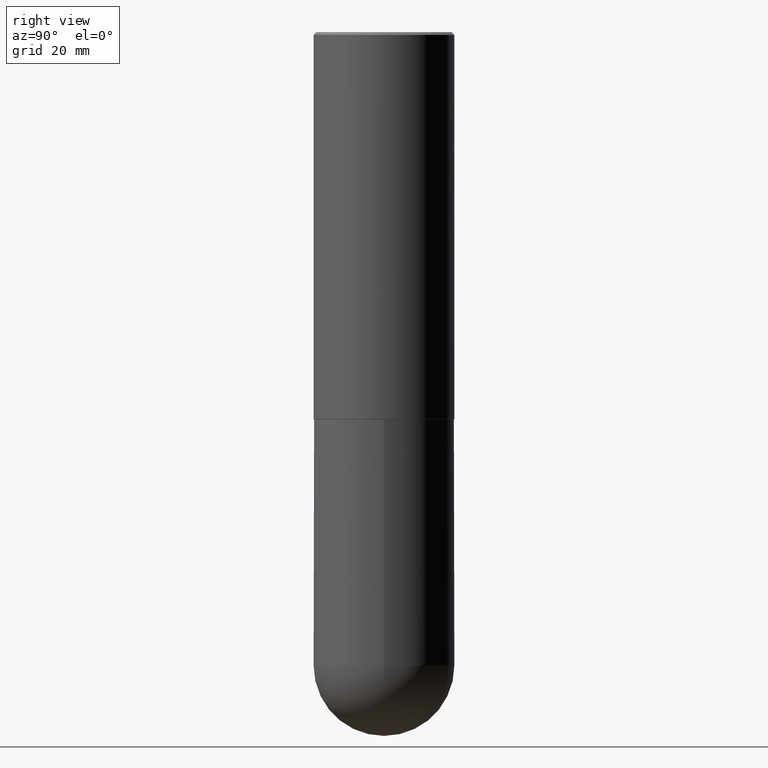
[diagram: clean part render]
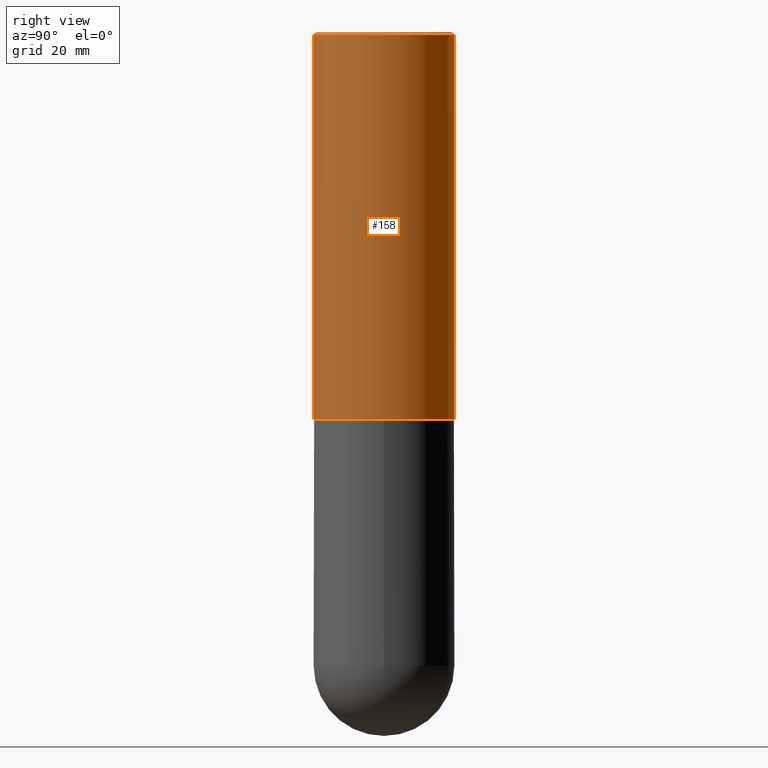
[diagram: same view with one face highlighted and labeled with its STEP entity id]
A machine part, right view. The second image highlights one B-rep face of the part: STEP entity #158.
In plain terms, the highlighted cylindrical surface (partial cylindrical patch) has radius 12.7 mm, axis along (-0, 0, 1).
Its self-contained STEP definition (entity closure, byte-faithful):
#2 = ORIENTED_EDGE ( 'NONE', *, *, #10, .F. ) ;
#10 = EDGE_CURVE ( 'NONE', #255, #55, #181, .T. ) ;
#35 = ORIENTED_EDGE ( 'NONE', *, *, #227, .T. ) ;
#46 = CARTESIAN_POINT ( 'NONE',  ( 3.552713678800535639E-15, 0.4999999999999907296, -2.749000000000001886 ) ) ;
#47 = DIRECTION ( 'NONE',  ( -2.444827589865469410E-29, 3.492399597108675869E-15, 1.000000000000000000 ) ) ;
#55 = VERTEX_POINT ( 'NONE', #360 ) ;
#61 = AXIS2_PLACEMENT_3D ( 'NONE', #290, #329, #262 ) ;
#63 = DIRECTION ( 'NONE',  ( -2.444827589865469410E-29, 3.492399597108675869E-15, 1.000000000000000000 ) ) ;
#87 = EDGE_CURVE ( 'NONE', #255, #287, #377, .T. ) ;
#93 = EDGE_LOOP ( 'NONE', ( #199, #35, #346, #2 ) ) ;
#99 = VERTEX_POINT ( 'NONE', #338 ) ;
#104 = CARTESIAN_POINT ( 'NONE',  ( 3.552713678800501718E-15, 0.5000000000000001110, -1.746199798554338132E-15 ) ) ;
#107 = DIRECTION ( 'NONE',  ( -6.982962677686265922E-15, -1.000000000000000000, 3.278217592397113496E-15 ) ) ;
#112 = CARTESIAN_POINT ( 'NONE',  ( 6.720831044540175662E-29, -9.600606492451749186E-15, -2.749000000000000110 ) ) ;
#139 = LINE ( 'NONE', #104, #212 ) ;
#154 = VECTOR ( 'NONE', #47, 39.37007874015748143 ) ;
#158 = ADVANCED_FACE ( 'NONE', ( #229 ), #165, .T. ) ;
#161 = AXIS2_PLACEMENT_3D ( 'NONE', #112, #209, #107 ) ;
#165 = CYLINDRICAL_SURFACE ( 'NONE', #61, 0.5000000000000001110 ) ;
#181 = LINE ( 'NONE', #270, #154 ) ;
#197 = CIRCLE ( 'NONE', #241, 0.4999999999999999445 ) ;
#199 = ORIENTED_EDGE ( 'NONE', *, *, #87, .T. ) ;
#209 = DIRECTION ( 'NONE',  ( -2.444827589865469410E-29, 3.492399597108675474E-15, 1.000000000000000000 ) ) ;
#212 = VECTOR ( 'NONE', #63, 39.37007874015748143 ) ;
#227 = EDGE_CURVE ( 'NONE', #287, #99, #139, .T. ) ;
#229 = FACE_OUTER_BOUND ( 'NONE', #93, .T. ) ;
#241 = AXIS2_PLACEMENT_3D ( 'NONE', #340, #330, #264 ) ;
#255 = VERTEX_POINT ( 'NONE', #334 ) ;
#262 = DIRECTION ( 'NONE',  ( -6.982962677686265922E-15, -1.000000000000000000, 3.492399597108675474E-15 ) ) ;
#264 = DIRECTION ( 'NONE',  ( -6.982962677686265922E-15, -1.000000000000000000, 3.491643216902136802E-15 ) ) ;
#270 = CARTESIAN_POINT ( 'NONE',  ( -3.491481338843133750E-15, -0.5000000000000001110, 1.746199798554338132E-15 ) ) ;
#273 = EDGE_CURVE ( 'NONE', #55, #99, #197, .T. ) ;
#287 = VERTEX_POINT ( 'NONE', #46 ) ;
#290 = CARTESIAN_POINT ( 'NONE',  ( 0.000000000000000000, 0.000000000000000000, 0.000000000000000000 ) ) ;
#329 = DIRECTION ( 'NONE',  ( -2.444827589865469410E-29, 3.492399597108675474E-15, 1.000000000000000000 ) ) ;
#330 = DIRECTION ( 'NONE',  ( -2.444827589865469410E-29, 3.492399597108675474E-15, 1.000000000000000000 ) ) ;
#334 = CARTESIAN_POINT ( 'NONE',  ( -3.491481338843068274E-15, -0.5000000000000099920, -2.748999999999998334 ) ) ;
#338 = CARTESIAN_POINT ( 'NONE',  ( 3.491481338843132961E-15, 0.4999999999999998335, -0.02000000000000185310 ) ) ;
#340 = CARTESIAN_POINT ( 'NONE',  ( 4.889655179730964743E-31, -6.984799194217388025E-17, -0.02000000000000010797 ) ) ;
#346 = ORIENTED_EDGE ( 'NONE', *, *, #273, .F. ) ;
#360 = CARTESIAN_POINT ( 'NONE',  ( -3.430248998885764598E-15, -0.5000000000000000000, -0.01999999999999835937 ) ) ;
#377 = CIRCLE ( 'NONE', #161, 0.5000000000000003331 ) ;